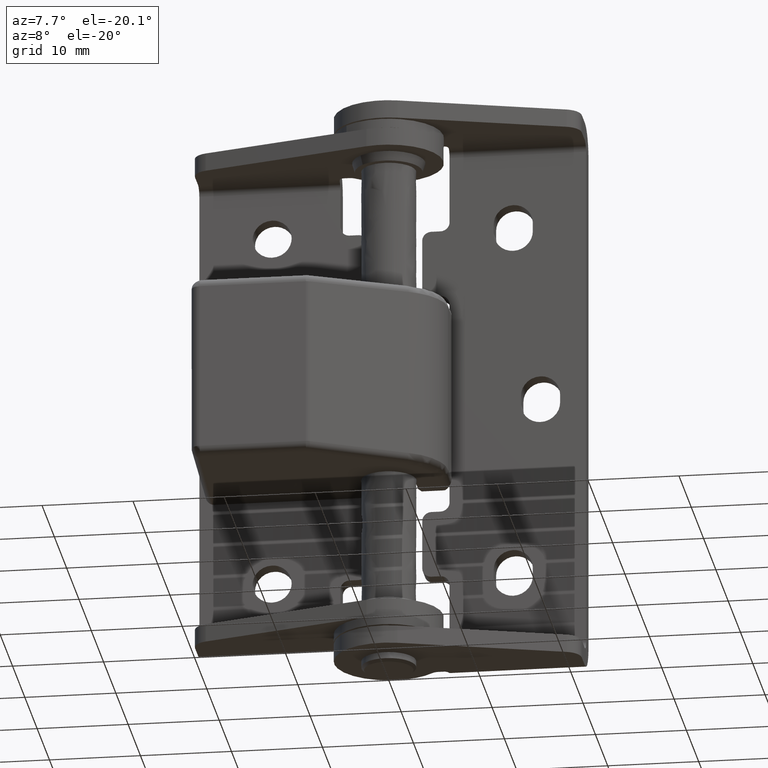
[diagram: clean part render]
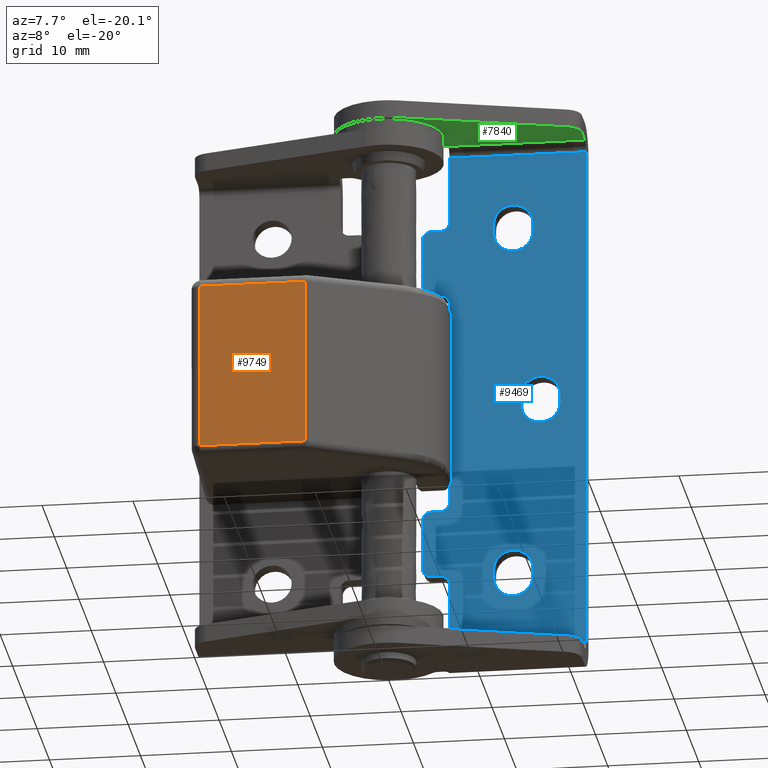
[diagram: same view with three faces highlighted in distinct colors, each labeled with its STEP entity id]
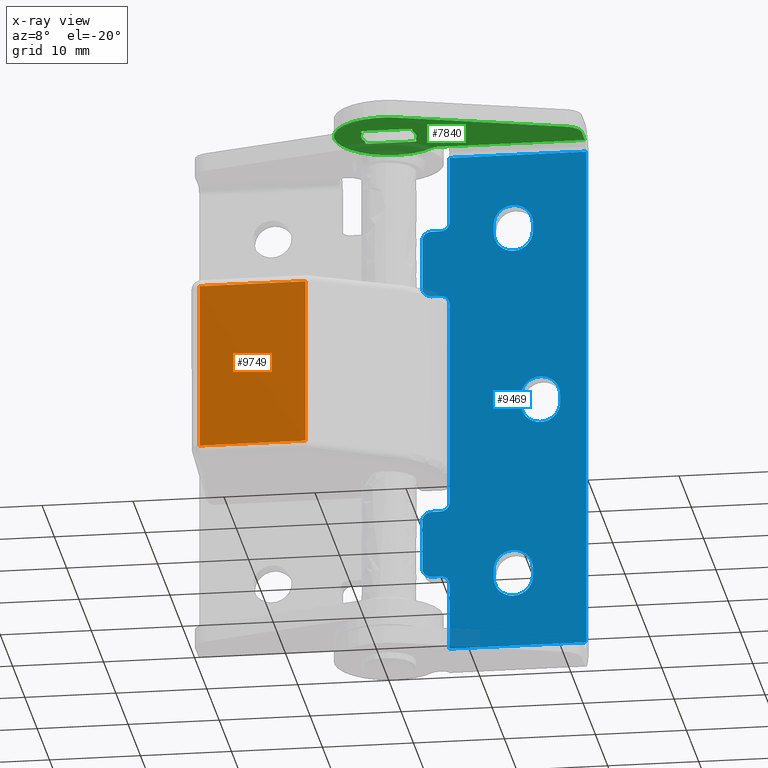
[diagram: x-ray of the same camera — body ghosted, the three highlighted faces saturated]
A machine part, auxiliary view with three faces highlighted in distinct colors.
The next image is the same camera in x-ray (body ghosted, the three faces saturated) — at least one of them is partly hidden behind the body in this view.
Their STEP definitions:

[orange] entity #9749 — the highlighted face is a freeform B-spline surface patch.
#9486=CARTESIAN_POINT('',(-7.641471176327670,-11.100000000000000,21.949999999999999));
#9487=VERTEX_POINT('',#9486);
#9488=CARTESIAN_POINT('',(-7.641471176327670,-11.100000000000000,40.442725711301250));
#9489=VERTEX_POINT('',#9488);
#9490=CARTESIAN_POINT('',(-7.641471176327670,-11.100000000000000,21.949999999999999));
#9491=CARTESIAN_POINT('',(-7.641471176327670,-11.100000000000000,40.442725711301250));
#9492=QUASI_UNIFORM_CURVE('',1,(#9490,#9491),.UNSPECIFIED.,.F.,.U.);
#9493=EDGE_CURVE('',#9487,#9489,#9492,.T.);
#9544=CARTESIAN_POINT('',(-19.292725711301149,-11.100000000000000,21.949999999999999));
#9545=VERTEX_POINT('',#9544);
#9558=CARTESIAN_POINT('',(-19.292725711301149,-11.100000000000000,40.442725711301250));
#9559=VERTEX_POINT('',#9558);
#9560=CARTESIAN_POINT('',(-19.292725711301149,-11.100000000000000,40.442725711301250));
#9561=CARTESIAN_POINT('',(-19.292725711301149,-11.100000000000000,21.949999999999999));
#9562=QUASI_UNIFORM_CURVE('',1,(#9560,#9561),.UNSPECIFIED.,.F.,.U.);
#9563=EDGE_CURVE('',#9559,#9545,#9562,.T.);
#9730=CARTESIAN_POINT('',(-19.874705852740679,-11.100000000000000,21.026288386562989));
#9731=CARTESIAN_POINT('',(-19.874705852740679,-11.100000000000000,41.366437820751813));
#9732=CARTESIAN_POINT('',(-7.059490722377138,-11.100000000000000,21.026288386562989));
#9733=CARTESIAN_POINT('',(-7.059490722377138,-11.100000000000000,41.366437820751813));
#9734=B_SPLINE_SURFACE_WITH_KNOTS('',1,1,((#9730,#9732),(#9731,#9733)),.UNSPECIFIED.,.F.,.F.,.U.,(2,2),(2,2),(0.0,20.340149434188820),(0.0,12.815215130363541),.UNSPECIFIED.);
#9735=ORIENTED_EDGE('',*,*,#9563,.T.);
#9736=CARTESIAN_POINT('',(-19.292725711301149,-11.100000000000000,21.949999999999999));
#9737=CARTESIAN_POINT('',(-7.641471176327670,-11.100000000000000,21.949999999999999));
#9738=QUASI_UNIFORM_CURVE('',1,(#9736,#9737),.UNSPECIFIED.,.F.,.U.);
#9739=EDGE_CURVE('',#9545,#9487,#9738,.T.);
#9740=ORIENTED_EDGE('',*,*,#9739,.T.);
#9741=ORIENTED_EDGE('',*,*,#9493,.T.);
#9742=CARTESIAN_POINT('',(-7.641471176327670,-11.100000000000000,40.442725711301250));
#9743=CARTESIAN_POINT('',(-19.292725711301149,-11.100000000000000,40.442725711301250));
#9744=QUASI_UNIFORM_CURVE('',1,(#9742,#9743),.UNSPECIFIED.,.F.,.U.);
#9745=EDGE_CURVE('',#9489,#9559,#9744,.T.);
#9746=ORIENTED_EDGE('',*,*,#9745,.T.);
#9747=EDGE_LOOP('',(#9735,#9740,#9741,#9746));
#9748=FACE_OUTER_BOUND('',#9747,.T.);
#9749=ADVANCED_FACE('',(#9748),#9734,.F.);

[blue] entity #9469 — the highlighted face is a freeform B-spline surface patch.
#7274=CARTESIAN_POINT('',(21.0,4.999999999999671,59.899999999999999));
#7275=VERTEX_POINT('',#7274);
#7322=CARTESIAN_POINT('',(6.000000000000150,4.999999999999671,59.899999999999999));
#7323=VERTEX_POINT('',#7322);
#7333=CARTESIAN_POINT('',(21.0,4.999999999999671,59.899999999999999));
#7334=CARTESIAN_POINT('',(6.000000000000150,4.999999999999671,59.899999999999999));
#7335=QUASI_UNIFORM_CURVE('',1,(#7333,#7334),.UNSPECIFIED.,.F.,.U.);
#7336=EDGE_CURVE('',#7275,#7323,#7335,.T.);
#7389=CARTESIAN_POINT('',(21.0,4.999999999999671,3.0));
#7390=VERTEX_POINT('',#7389);
#7402=CARTESIAN_POINT('',(6.000000000000241,4.999999999999671,3.0));
#7403=VERTEX_POINT('',#7402);
#7404=CARTESIAN_POINT('',(6.000000000000241,4.999999999999671,3.0));
#7405=CARTESIAN_POINT('',(21.0,4.999999999999671,3.0));
#7406=QUASI_UNIFORM_CURVE('',1,(#7404,#7405),.UNSPECIFIED.,.F.,.U.);
#7407=EDGE_CURVE('',#7403,#7390,#7406,.T.);
#8412=CARTESIAN_POINT('',(10.850000000000000,4.999999999999671,10.949999999999999));
#8413=VERTEX_POINT('',#8412);
#8419=CARTESIAN_POINT('',(13.000000983283369,4.999999999999670,8.800000000000225));
#8420=VERTEX_POINT('',#8419);
#8421=CARTESIAN_POINT('',(10.850000000000000,4.999999999999671,10.949999999999999));
#8422=CARTESIAN_POINT('',(10.849793394212311,4.999999999999686,10.694922383302821));
#8423=CARTESIAN_POINT('',(10.929214413477339,4.999999999999597,10.255322200595170));
#8424=CARTESIAN_POINT('',(11.197833607391800,4.999999999999770,9.745320923116250));
#8425=CARTESIAN_POINT('',(11.478536427124350,4.999999999999516,9.415925130594307));
#8426=CARTESIAN_POINT('',(11.797440880290720,4.999999999999756,9.150880744095732));
#8427=CARTESIAN_POINT('',(12.287786548937641,4.999999999999623,8.884829543755441));
#8428=CARTESIAN_POINT('',(12.727314531786440,4.999999999999668,8.799719339258706));
#8429=CARTESIAN_POINT('',(13.000000983283369,4.999999999999670,8.800000000000225));
#8430=B_SPLINE_CURVE_WITH_KNOTS('',3,(#8421,#8422,#8423,#8424,#8425,#8426,#8427,#8428,#8429),.UNSPECIFIED.,.F.,.U.,(4,1,1,1,1,1,4),(0.000000091122906,0.765153841179810,1.319246613823916,1.714973668953921,2.057987691563523,2.559310118497291,3.377233847388637),.UNSPECIFIED.);
#8431=EDGE_CURVE('',#8413,#8420,#8430,.T.);
#8433=CARTESIAN_POINT('',(15.150000000000000,4.999999999999671,10.949999999999999));
#8434=VERTEX_POINT('',#8433);
#8435=CARTESIAN_POINT('',(13.000000983283369,4.999999999999670,8.800000000000225));
#8436=CARTESIAN_POINT('',(13.272683017262761,4.999999999999660,8.799741815727574));
#8437=CARTESIAN_POINT('',(13.712221026016540,4.999999999999687,8.884808855302445));
#8438=CARTESIAN_POINT('',(14.218109234579680,4.999999999999659,9.159320381873771));
#8439=CARTESIAN_POINT('',(14.560972308214509,4.999999999999675,9.451436835746103));
#8440=CARTESIAN_POINT('',(14.862620482882820,4.999999999999661,9.832963009427843));
#8441=CARTESIAN_POINT('',(15.092486549669349,4.999999999999695,10.343182841179109));
#8442=CARTESIAN_POINT('',(15.150076290108951,4.999999999999647,10.747713141612589));
#8443=CARTESIAN_POINT('',(15.150000000000000,4.999999999999671,10.949999999999999));
#8444=B_SPLINE_CURVE_WITH_KNOTS('',3,(#8435,#8436,#8437,#8438,#8439,#8440,#8441,#8442,#8443),.UNSPECIFIED.,.F.,.U.,(4,1,1,1,1,1,4),(0.000000091460636,0.817923435065243,1.319246180944873,1.714973105788162,2.163527568453663,2.770389226314284,3.377232738992189),.UNSPECIFIED.);
#8445=EDGE_CURVE('',#8420,#8434,#8444,.T.);
#8475=CARTESIAN_POINT('',(15.150000000000000,4.999999999999671,51.950000000000003));
#8476=VERTEX_POINT('',#8475);
#8482=CARTESIAN_POINT('',(12.999999016716631,4.999999999999670,54.099999999999767));
#8483=VERTEX_POINT('',#8482);
#8484=CARTESIAN_POINT('',(15.150000000000000,4.999999999999671,51.950000000000003));
#8485=CARTESIAN_POINT('',(15.150003660258919,4.999999999999670,52.073122474268843));
#8486=CARTESIAN_POINT('',(15.125029685133130,4.999999999999674,52.363356756284453));
#8487=CARTESIAN_POINT('',(14.999122394926880,4.999999999999670,52.787815381564229));
#8488=CARTESIAN_POINT('',(14.779220541833601,4.999999999999680,53.181545848451229));
#8489=CARTESIAN_POINT('',(14.458506154510321,4.999999999999640,53.558098451112798));
#8490=CARTESIAN_POINT('',(14.062234486155770,4.999999999999695,53.844525218999841));
#8491=CARTESIAN_POINT('',(13.545236283502790,4.999999999999637,54.051218221529467));
#8492=CARTESIAN_POINT('',(13.202286241157720,4.999999999999739,54.100073317775482));
#8493=CARTESIAN_POINT('',(12.999999016716631,4.999999999999670,54.099999999999767));
#8494=B_SPLINE_CURVE_WITH_KNOTS('',3,(#8484,#8485,#8486,#8487,#8488,#8489,#8490,#8491,#8492,#8493),.UNSPECIFIED.,.F.,.U.,(4,1,1,1,1,1,1,4),(0.000000091084284,0.369372592057379,0.870693293373913,1.319246613799931,1.714973668934453,2.348231069103239,2.770390135100517,3.377233847388828),.UNSPECIFIED.);
#8495=EDGE_CURVE('',#8476,#8483,#8494,.T.);
#8497=CARTESIAN_POINT('',(10.850000000000000,4.999999999999671,51.950000000000003));
#8498=VERTEX_POINT('',#8497);
#8499=CARTESIAN_POINT('',(12.999999016716631,4.999999999999670,54.099999999999767));
#8500=CARTESIAN_POINT('',(12.824101598443811,4.999999999999663,54.100043480534403));
#8501=CARTESIAN_POINT('',(12.533895776107730,4.999999999999671,54.064176134210634));
#8502=CARTESIAN_POINT('',(12.115866907879980,4.999999999999671,53.923227687332101));
#8503=CARTESIAN_POINT('',(11.768442631901710,4.999999999999677,53.729233038679233));
#8504=CARTESIAN_POINT('',(11.465922726125680,4.999999999999647,53.471469337546068));
#8505=CARTESIAN_POINT('',(11.200883704621701,4.999999999999693,53.152558932756797));
#8506=CARTESIAN_POINT('',(10.934808448123039,4.999999999999635,52.662219997103762));
#8507=CARTESIAN_POINT('',(10.849741875677640,4.999999999999662,52.222681902812411));
#8508=CARTESIAN_POINT('',(10.850000000000000,4.999999999999671,51.950000000000003));
#8509=B_SPLINE_CURVE_WITH_KNOTS('',3,(#8499,#8500,#8501,#8502,#8503,#8504,#8505,#8506,#8507,#8508),.UNSPECIFIED.,.F.,.U.,(4,1,1,1,1,1,1,4),(0.000000091456119,0.527682692116088,0.870693007880625,1.319246180942828,1.714973105786884,2.057987015130767,2.559309278753933,3.377232738992172),.UNSPECIFIED.);
#8510=EDGE_CURVE('',#8483,#8498,#8509,.T.);
#8540=CARTESIAN_POINT('',(18.149999999999999,4.999999999999671,31.949999999999999));
#8541=VERTEX_POINT('',#8540);
#8547=CARTESIAN_POINT('',(15.999999016716631,4.999999999999671,34.099999999999781));
#8548=VERTEX_POINT('',#8547);
#8549=CARTESIAN_POINT('',(18.149999999999999,4.999999999999671,31.949999999999999));
#8550=CARTESIAN_POINT('',(18.150107962211148,4.999999999999672,32.169883396246910));
#8551=CARTESIAN_POINT('',(18.087393712573132,4.999999999999677,32.574382526635027));
#8552=CARTESIAN_POINT('',(17.862837531136080,4.999999999999652,33.056766418303702));
#8553=CARTESIAN_POINT('',(17.590209983825389,4.999999999999687,33.415028473825053));
#8554=CARTESIAN_POINT('',(17.321748763399039,4.999999999999708,33.658346182272382));
#8555=CARTESIAN_POINT('',(16.987930171194581,4.999999999999573,33.872623468505218));
#8556=CARTESIAN_POINT('',(16.562840150967300,4.999999999999791,34.048736567662907));
#8557=CARTESIAN_POINT('',(16.202283363249251,4.999999999999607,34.100069171246773));
#8558=CARTESIAN_POINT('',(15.999999016716631,4.999999999999671,34.099999999999781));
#8559=B_SPLINE_CURVE_WITH_KNOTS('',3,(#8549,#8550,#8551,#8552,#8553,#8554,#8555,#8556,#8557,#8558),.UNSPECIFIED.,.F.,.U.,(4,1,1,1,1,1,1,4),(0.000000091123685,0.659613345970790,1.213705938559106,1.583088384249104,2.005217953882646,2.295460679671922,2.770390135108174,3.377233847388515),.UNSPECIFIED.);
#8560=EDGE_CURVE('',#8541,#8548,#8559,.T.);
#8562=CARTESIAN_POINT('',(13.850000000000000,4.999999999999671,31.949999999999999));
#8563=VERTEX_POINT('',#8562);
#8564=CARTESIAN_POINT('',(15.999999016716631,4.999999999999671,34.099999999999781));
#8565=CARTESIAN_POINT('',(15.806506671767719,4.999999999999669,34.100064253635637));
#8566=CARTESIAN_POINT('',(15.516320211970470,4.999999999999675,34.060542962330558));
#8567=CARTESIAN_POINT('',(15.100424240464431,4.999999999999655,33.914605540281499));
#8568=CARTESIAN_POINT('',(14.768443466870799,4.999999999999703,33.729231108488889));
#8569=CARTESIAN_POINT('',(14.465921716529520,4.999999999999642,33.471469582307073));
#8570=CARTESIAN_POINT('',(14.200879834263770,4.999999999999679,33.152560406908947));
#8571=CARTESIAN_POINT('',(13.934830144580591,4.999999999999663,32.662213794159882));
#8572=CARTESIAN_POINT('',(13.849718751950149,4.999999999999663,32.222686584608873));
#8573=CARTESIAN_POINT('',(13.850000000000000,4.999999999999671,31.949999999999999));
#8574=B_SPLINE_CURVE_WITH_KNOTS('',3,(#8564,#8565,#8566,#8567,#8568,#8569,#8570,#8571,#8572,#8573),.UNSPECIFIED.,.F.,.U.,(4,1,1,1,1,1,1,4),(0.000000091474783,0.580453325388683,0.870693007893756,1.319246180953028,1.714973105794142,2.057987015135844,2.559309278756468,3.377232738992141),.UNSPECIFIED.);
#8575=EDGE_CURVE('',#8548,#8563,#8574,.T.);
#8593=CARTESIAN_POINT('',(6.000000000000230,4.999999999999671,52.450000000003698));
#8594=VERTEX_POINT('',#8593);
#8600=CARTESIAN_POINT('',(6.000000000000230,4.999999999999671,52.450000000003698));
#8601=CARTESIAN_POINT('',(6.000000000000150,4.999999999999671,59.899999999999999));
#8602=QUASI_UNIFORM_CURVE('',1,(#8600,#8601),.UNSPECIFIED.,.F.,.U.);
#8603=EDGE_CURVE('',#8594,#7323,#8602,.T.);
#8615=CARTESIAN_POINT('',(15.150000000000000,4.999999999999671,50.950000000000003));
#8616=VERTEX_POINT('',#8615);
#8622=CARTESIAN_POINT('',(15.150000000000000,4.999999999999671,51.950000000000003));
#8623=CARTESIAN_POINT('',(15.150000000000000,4.999999999999671,50.950000000000003));
#8624=QUASI_UNIFORM_CURVE('',1,(#8622,#8623),.UNSPECIFIED.,.F.,.U.);
#8625=EDGE_CURVE('',#8476,#8616,#8624,.T.);
#8651=CARTESIAN_POINT('',(10.850000000000000,4.999999999999671,50.950000000000003));
#8652=VERTEX_POINT('',#8651);
#8658=CARTESIAN_POINT('',(13.000000983283369,4.999999999999671,48.800000000000232));
#8659=VERTEX_POINT('',#8658);
#8660=CARTESIAN_POINT('',(10.850000000000000,4.999999999999671,50.950000000000003));
#8661=CARTESIAN_POINT('',(10.849942609664740,4.999999999999674,50.756510055116593));
#8662=CARTESIAN_POINT('',(10.899007737513200,4.999999999999665,50.395961054867570));
#8663=CARTESIAN_POINT('',(11.099295968213401,4.999999999999672,49.903859441065201));
#8664=CARTESIAN_POINT('',(11.407865040086820,4.999999999999664,49.471360261313720));
#8665=CARTESIAN_POINT('',(11.801740981024130,4.999999999999686,49.139947293757551));
#8666=CARTESIAN_POINT('',(12.340522309367950,4.999999999999667,48.872901654515410));
#8667=CARTESIAN_POINT('',(12.744912527342301,4.999999999999679,48.799778854560770));
#8668=CARTESIAN_POINT('',(13.000000983283369,4.999999999999671,48.800000000000232));
#8669=B_SPLINE_CURVE_WITH_KNOTS('',3,(#8660,#8661,#8662,#8663,#8664,#8665,#8666,#8667,#8668),.UNSPECIFIED.,.F.,.U.,(4,1,1,1,1,1,4),(0.000000091136048,0.580453515654607,1.081772563678272,1.583088384255648,2.163528279321926,2.612079737518249,3.377233847388635),.UNSPECIFIED.);
#8670=EDGE_CURVE('',#8652,#8659,#8669,.T.);
#8672=CARTESIAN_POINT('',(13.000000983283369,4.999999999999671,48.800000000000232));
#8673=CARTESIAN_POINT('',(13.219886117212241,4.999999999999673,48.799882634408213));
#8674=CARTESIAN_POINT('',(13.580400268318790,4.999999999999655,48.855824271126203));
#8675=CARTESIAN_POINT('',(14.035259244237359,4.999999999999710,49.050831275436757));
#8676=CARTESIAN_POINT('',(14.378986487422081,4.999999999999620,49.283563308830239));
#8677=CARTESIAN_POINT('',(14.703954853353940,4.999999999999711,49.608490888541922));
#8678=CARTESIAN_POINT('',(14.957682082252321,4.999999999999616,50.014618261688732));
#8679=CARTESIAN_POINT('',(15.115840718881630,4.999999999999764,50.483891749839550));
#8680=CARTESIAN_POINT('',(15.150030204182690,4.999999999999615,50.791694882839359));
#8681=CARTESIAN_POINT('',(15.150000000000000,4.999999999999671,50.950000000000003));
#8682=B_SPLINE_CURVE_WITH_KNOTS('',3,(#8672,#8673,#8674,#8675,#8676,#8677,#8678,#8679,#8680,#8681),.UNSPECIFIED.,.F.,.U.,(4,1,1,1,1,1,1,4),(0.000000091459207,0.659613129889625,1.081772209188637,1.477553678639453,1.899679561691809,2.453770272488490,2.902321583603634,3.377232738992126),.UNSPECIFIED.);
#8683=EDGE_CURVE('',#8659,#8616,#8682,.T.);
#8696=CARTESIAN_POINT('',(10.850000000000000,4.999999999999671,50.950000000000003));
#8697=CARTESIAN_POINT('',(10.850000000000000,4.999999999999671,51.950000000000003));
#8698=QUASI_UNIFORM_CURVE('',1,(#8696,#8697),.UNSPECIFIED.,.F.,.U.);
#8699=EDGE_CURVE('',#8652,#8498,#8698,.T.);
#8711=CARTESIAN_POINT('',(18.149999999999999,4.999999999999671,30.949999999999999));
#8712=VERTEX_POINT('',#8711);
#8718=CARTESIAN_POINT('',(18.149999999999999,4.999999999999671,31.949999999999999));
#8719=CARTESIAN_POINT('',(18.149999999999999,4.999999999999671,30.949999999999999));
#8720=QUASI_UNIFORM_CURVE('',1,(#8718,#8719),.UNSPECIFIED.,.F.,.U.);
#8721=EDGE_CURVE('',#8541,#8712,#8720,.T.);
#8747=CARTESIAN_POINT('',(13.850000000000000,4.999999999999671,30.949999999999999));
#8748=VERTEX_POINT('',#8747);
#8754=CARTESIAN_POINT('',(16.000000983283371,4.999999999999670,28.800000000000221));
#8755=VERTEX_POINT('',#8754);
#8756=CARTESIAN_POINT('',(13.850000000000000,4.999999999999671,30.949999999999999));
#8757=CARTESIAN_POINT('',(13.849897099569301,4.999999999999679,30.730120850841072));
#8758=CARTESIAN_POINT('',(13.909887026581741,4.999999999999667,30.343202254397749));
#8759=CARTESIAN_POINT('',(14.120922720135260,4.999999999999665,29.874985734712091));
#8760=CARTESIAN_POINT('',(14.394986871288200,4.999999999999662,29.495807683427550));
#8761=CARTESIAN_POINT('',(14.729818618627760,4.999999999999704,29.192305871411701));
#8762=CARTESIAN_POINT('',(15.092706118645550,4.999999999999588,28.989710760986231));
#8763=CARTESIAN_POINT('',(15.507532157438970,4.999999999999698,28.841273219993319));
#8764=CARTESIAN_POINT('',(15.797709037573449,4.999999999999668,28.799922266355090));
#8765=CARTESIAN_POINT('',(16.000000983283371,4.999999999999670,28.800000000000221));
#8766=B_SPLINE_CURVE_WITH_KNOTS('',3,(#8756,#8757,#8758,#8759,#8760,#8761,#8762,#8763,#8764,#8765),.UNSPECIFIED.,.F.,.U.,(4,1,1,1,1,1,1,4),(0.000000091130116,0.659613345974426,1.160935210616188,1.530321830095784,2.057987691565407,2.506540696591449,2.770390135108563,3.377233847388639),.UNSPECIFIED.);
#8767=EDGE_CURVE('',#8748,#8755,#8766,.T.);
#8769=CARTESIAN_POINT('',(16.000000983283371,4.999999999999670,28.800000000000221));
#8770=CARTESIAN_POINT('',(16.158307147266960,4.999999999999674,28.799969122451731));
#8771=CARTESIAN_POINT('',(16.448517742949399,4.999999999999662,28.832211541888132));
#8772=CARTESIAN_POINT('',(16.919129687611061,4.999999999999674,28.984420744294649));
#8773=CARTESIAN_POINT('',(17.404998330424519,4.999999999999670,29.279601711321838));
#8774=CARTESIAN_POINT('',(17.794379583709819,4.999999999999660,29.720021621446239));
#8775=CARTESIAN_POINT('',(18.077108324795041,4.999999999999655,30.290515190019669));
#8776=CARTESIAN_POINT('',(18.150212682675889,4.999999999999687,30.694917263959169));
#8777=CARTESIAN_POINT('',(18.149999999999999,4.999999999999671,30.949999999999999));
#8778=B_SPLINE_CURVE_WITH_KNOTS('',3,(#8769,#8770,#8771,#8772,#8773,#8774,#8775,#8776,#8777),.UNSPECIFIED.,.F.,.U.,(4,1,1,1,1,1,4),(0.000000091463717,0.474912289953850,0.870693007885066,1.477553678640542,2.163527568455173,2.612078880541985,3.377232738992127),.UNSPECIFIED.);
#8779=EDGE_CURVE('',#8755,#8712,#8778,.T.);
#8792=CARTESIAN_POINT('',(13.850000000000000,4.999999999999671,30.949999999999999));
#8793=CARTESIAN_POINT('',(13.850000000000000,4.999999999999671,31.949999999999999));
#8794=QUASI_UNIFORM_CURVE('',1,(#8792,#8793),.UNSPECIFIED.,.F.,.U.);
#8795=EDGE_CURVE('',#8748,#8563,#8794,.T.);
#8816=CARTESIAN_POINT('',(5.000000000000260,4.999999999999671,51.450000000003698));
#8817=VERTEX_POINT('',#8816);
#8823=CARTESIAN_POINT('',(5.000000000000260,4.999999999999671,51.450000000003698));
#8824=CARTESIAN_POINT('',(5.130921460936106,4.999999999999684,51.449855304292392));
#8825=CARTESIAN_POINT('',(5.359883088721492,4.999999999999653,51.495657959834674));
#8826=CARTESIAN_POINT('',(5.650741415561999,4.999999999999674,51.669964105318527));
#8827=CARTESIAN_POINT('',(5.826363106750893,4.999999999999673,51.868600810206431));
#8828=CARTESIAN_POINT('',(5.962483827631151,4.999999999999658,52.131030177021373));
#8829=CARTESIAN_POINT('',(6.000159072857158,4.999999999999736,52.319066209155132));
#8830=CARTESIAN_POINT('',(6.000000000000230,4.999999999999671,52.450000000003698));
#8831=B_SPLINE_CURVE_WITH_KNOTS('',3,(#8823,#8824,#8825,#8826,#8827,#8828,#8829,#8830),.UNSPECIFIED.,.F.,.U.,(4,1,1,1,1,4),(0.000000143571526,0.392709598728133,0.687244893560149,1.006303829732421,1.178126848960124,1.570835744349083),.UNSPECIFIED.);
#8832=EDGE_CURVE('',#8817,#8594,#8831,.T.);
#8844=CARTESIAN_POINT('',(4.000000000000055,4.999999999999671,51.450000000003698));
#8845=VERTEX_POINT('',#8844);
#8851=CARTESIAN_POINT('',(4.000000000000055,4.999999999999671,51.450000000003698));
#8852=CARTESIAN_POINT('',(5.000000000000260,4.999999999999671,51.450000000003698));
#8853=QUASI_UNIFORM_CURVE('',1,(#8851,#8852),.UNSPECIFIED.,.F.,.U.);
#8854=EDGE_CURVE('',#8845,#8817,#8853,.T.);
#8875=CARTESIAN_POINT('',(3.000000000000075,4.999999999999671,50.450000000003698));
#8876=VERTEX_POINT('',#8875);
#8882=CARTESIAN_POINT('',(4.000000000000055,4.999999999999671,51.450000000003698));
#8883=CARTESIAN_POINT('',(3.852692912520805,4.999999999999673,51.450202663181408));
#8884=CARTESIAN_POINT('',(3.623835896042683,4.999999999999664,51.398457836034908));
#8885=CARTESIAN_POINT('',(3.338291328919647,4.999999999999690,51.217590963148147));
#8886=CARTESIAN_POINT('',(3.173634951901955,4.999999999999608,51.031404372825762));
#8887=CARTESIAN_POINT('',(3.037516874470553,4.999999999999719,50.768968052630193));
#8888=CARTESIAN_POINT('',(2.999840792870465,4.999999999999636,50.580933574141838));
#8889=CARTESIAN_POINT('',(3.000000000000075,4.999999999999671,50.450000000003698));
#8890=B_SPLINE_CURVE_WITH_KNOTS('',3,(#8882,#8883,#8884,#8885,#8886,#8887,#8888,#8889),.UNSPECIFIED.,.F.,.U.,(4,1,1,1,1,4),(0.000000143574722,0.441799839028644,0.687244893560857,1.006303829732445,1.178126848959996,1.570835744349064),.UNSPECIFIED.);
#8891=EDGE_CURVE('',#8845,#8876,#8890,.T.);
#8903=CARTESIAN_POINT('',(3.000000000000055,4.999999999999671,44.950000000003747));
#8904=VERTEX_POINT('',#8903);
#8910=CARTESIAN_POINT('',(3.000000000000055,4.999999999999671,44.950000000003747));
#8911=CARTESIAN_POINT('',(3.000000000000075,4.999999999999671,50.450000000003698));
#8912=QUASI_UNIFORM_CURVE('',1,(#8910,#8911),.UNSPECIFIED.,.F.,.U.);
#8913=EDGE_CURVE('',#8904,#8876,#8912,.T.);
#8934=CARTESIAN_POINT('',(4.000000000000055,4.999999999999671,43.950000000003747));
#8935=VERTEX_POINT('',#8934);
#8941=CARTESIAN_POINT('',(3.000000000000055,4.999999999999671,44.950000000003747));
#8942=CARTESIAN_POINT('',(2.999855587502118,4.999999999999676,44.819078195853258));
#8943=CARTESIAN_POINT('',(3.045657748257857,4.999999999999663,44.590117274976173));
#8944=CARTESIAN_POINT('',(3.219963143715324,4.999999999999657,44.299255511224843));
#8945=CARTESIAN_POINT('',(3.418604237945643,4.999999999999740,44.123645119258349));
#8946=CARTESIAN_POINT('',(3.681020510709375,4.999999999999592,43.987500075434383));
#8947=CARTESIAN_POINT('',(3.869071083307659,4.999999999999709,43.949848124070463));
#8948=CARTESIAN_POINT('',(4.000000000000055,4.999999999999671,43.950000000003747));
#8949=B_SPLINE_CURVE_WITH_KNOTS('',3,(#8941,#8942,#8943,#8944,#8945,#8946,#8947,#8948),.UNSPECIFIED.,.F.,.U.,(4,1,1,1,1,4),(0.000000143574360,0.392709598729336,0.687244893560492,1.006303829732368,1.178126848960033,1.570835744349058),.UNSPECIFIED.);
#8950=EDGE_CURVE('',#8904,#8935,#8949,.T.);
#8962=CARTESIAN_POINT('',(5.000000000000230,4.999999999999671,43.950000000003747));
#8963=VERTEX_POINT('',#8962);
#8969=CARTESIAN_POINT('',(5.000000000000230,4.999999999999671,43.950000000003747));
#8970=CARTESIAN_POINT('',(4.000000000000055,4.999999999999671,43.950000000003747));
#8971=QUASI_UNIFORM_CURVE('',1,(#8969,#8970),.UNSPECIFIED.,.F.,.U.);
#8972=EDGE_CURVE('',#8963,#8935,#8971,.T.);
#8993=CARTESIAN_POINT('',(6.000000000000230,4.999999999999671,42.950000000003747));
#8994=VERTEX_POINT('',#8993);
#9000=CARTESIAN_POINT('',(6.000000000000230,4.999999999999671,42.950000000003747));
#9001=CARTESIAN_POINT('',(6.000154536031614,4.999999999999676,43.080932536375428));
#9002=CARTESIAN_POINT('',(5.962490709494401,4.999999999999673,43.268973024974557));
#9003=CARTESIAN_POINT('',(5.830135246627668,4.999999999999666,43.524101034584540));
#9004=CARTESIAN_POINT('',(5.668087211340325,4.999999999999692,43.711964703131748));
#9005=CARTESIAN_POINT('',(5.384348976675201,4.999999999999651,43.896589366822766));
#9006=CARTESIAN_POINT('',(5.147309273342344,4.999999999999690,43.950233835416498));
#9007=CARTESIAN_POINT('',(5.000000000000230,4.999999999999671,43.950000000003747));
#9008=B_SPLINE_CURVE_WITH_KNOTS('',3,(#9000,#9001,#9002,#9003,#9004,#9005,#9006,#9007),.UNSPECIFIED.,.F.,.U.,(4,1,1,1,1,4),(0.000000143573052,0.392709598729018,0.564531804314637,0.859036542772161,1.129037301955464,1.570835744349132),.UNSPECIFIED.);
#9009=EDGE_CURVE('',#8994,#8963,#9008,.T.);
#9021=CARTESIAN_POINT('',(6.000000000000230,4.999999999999671,19.950000000003651));
#9022=VERTEX_POINT('',#9021);
#9028=CARTESIAN_POINT('',(6.000000000000230,4.999999999999671,19.950000000003651));
#9029=CARTESIAN_POINT('',(6.000000000000230,4.999999999999671,42.950000000003747));
#9030=QUASI_UNIFORM_CURVE('',1,(#9028,#9029),.UNSPECIFIED.,.F.,.U.);
#9031=EDGE_CURVE('',#9022,#8994,#9030,.T.);
#9052=CARTESIAN_POINT('',(5.000000000000230,4.999999999999671,18.950000000003651));
#9053=VERTEX_POINT('',#9052);
#9059=CARTESIAN_POINT('',(5.000000000000230,4.999999999999671,18.950000000003651));
#9060=CARTESIAN_POINT('',(5.114542321969313,4.999999999999680,18.949928840802439));
#9061=CARTESIAN_POINT('',(5.343592166183072,4.999999999999656,18.989762387020850));
#9062=CARTESIAN_POINT('',(5.596402764688972,4.999999999999682,19.132982873178040));
#9063=CARTESIAN_POINT('',(5.796243739724432,4.999999999999668,19.327989843158189));
#9064=CARTESIAN_POINT('',(5.952724493646993,4.999999999999679,19.581918047349909));
#9065=CARTESIAN_POINT('',(6.000140562405460,4.999999999999675,19.819083818285652));
#9066=CARTESIAN_POINT('',(6.000000000000230,4.999999999999671,19.950000000003651));
#9067=B_SPLINE_CURVE_WITH_KNOTS('',3,(#9059,#9060,#9061,#9062,#9063,#9064,#9065,#9066),.UNSPECIFIED.,.F.,.U.,(4,1,1,1,1,4),(0.000000143572523,0.343620060913082,0.687244893560253,0.859036542771628,1.178126848959750,1.570835744349098),.UNSPECIFIED.);
#9068=EDGE_CURVE('',#9053,#9022,#9067,.T.);
#9080=CARTESIAN_POINT('',(4.000000000000055,4.999999999999671,18.950000000003850));
#9081=VERTEX_POINT('',#9080);
#9087=CARTESIAN_POINT('',(4.000000000000055,4.999999999999671,18.950000000003850));
#9088=CARTESIAN_POINT('',(5.000000000000230,4.999999999999671,18.950000000003651));
#9089=QUASI_UNIFORM_CURVE('',1,(#9087,#9088),.UNSPECIFIED.,.F.,.U.);
#9090=EDGE_CURVE('',#9081,#9053,#9089,.T.);
#9111=CARTESIAN_POINT('',(3.000000000000055,4.999999999999671,17.950000000003850));
#9112=VERTEX_POINT('',#9111);
#9118=CARTESIAN_POINT('',(4.000000000000055,4.999999999999671,18.950000000003850));
#9119=CARTESIAN_POINT('',(3.869073413155340,4.999999999999676,18.950150387945421));
#9120=CARTESIAN_POINT('',(3.664661119304298,4.999999999999659,18.909230915781752));
#9121=CARTESIAN_POINT('',(3.412279445034840,4.999999999999672,18.770293378397511));
#9122=CARTESIAN_POINT('',(3.235154534881466,4.999999999999672,18.609769499848870));
#9123=CARTESIAN_POINT('',(3.056493246426664,4.999999999999668,18.342483884045311));
#9124=CARTESIAN_POINT('',(2.999702462857639,4.999999999999677,18.105510072394502));
#9125=CARTESIAN_POINT('',(3.000000000000055,4.999999999999671,17.950000000003850));
#9126=B_SPLINE_CURVE_WITH_KNOTS('',3,(#9118,#9119,#9120,#9121,#9122,#9123,#9124,#9125),.UNSPECIFIED.,.F.,.U.,(4,1,1,1,1,4),(0.000000143573442,0.392709598729051,0.613615416985031,0.859036542771898,1.104488923595385,1.570835744349098),.UNSPECIFIED.);
#9127=EDGE_CURVE('',#9081,#9112,#9126,.T.);
#9139=CARTESIAN_POINT('',(3.000000000000055,4.999999999999671,12.450000000003641));
#9140=VERTEX_POINT('',#9139);
#9146=CARTESIAN_POINT('',(3.000000000000055,4.999999999999671,12.450000000003641));
#9147=CARTESIAN_POINT('',(3.000000000000055,4.999999999999671,17.950000000003850));
#9148=QUASI_UNIFORM_CURVE('',1,(#9146,#9147),.UNSPECIFIED.,.F.,.U.);
#9149=EDGE_CURVE('',#9140,#9112,#9148,.T.);
#9170=CARTESIAN_POINT('',(4.000000000000055,4.999999999999671,11.450000000003620));
#9171=VERTEX_POINT('',#9170);
#9177=CARTESIAN_POINT('',(3.000000000000055,4.999999999999671,12.450000000003641));
#9178=CARTESIAN_POINT('',(2.999746077100244,4.999999999999671,12.294493719274181));
#9179=CARTESIAN_POINT('',(3.054504941504332,4.999999999999673,12.065698390432321));
#9180=CARTESIAN_POINT('',(3.238622582032392,4.999999999999665,11.782803823948070));
#9181=CARTESIAN_POINT('',(3.437221571637350,4.999999999999691,11.607162381248971));
#9182=CARTESIAN_POINT('',(3.705507470372544,4.999999999999660,11.480321981133480));
#9183=CARTESIAN_POINT('',(3.893638865582444,4.999999999999679,11.449937052562820));
#9184=CARTESIAN_POINT('',(4.000000000000055,4.999999999999671,11.450000000003620));
#9185=B_SPLINE_CURVE_WITH_KNOTS('',3,(#9177,#9178,#9179,#9180,#9181,#9182,#9183,#9184),.UNSPECIFIED.,.F.,.U.,(4,1,1,1,1,4),(0.000000143571452,0.466347651051443,0.687244893559853,1.006303829732055,1.251764774322899,1.570835744349130),.UNSPECIFIED.);
#9186=EDGE_CURVE('',#9140,#9171,#9185,.T.);
#9198=CARTESIAN_POINT('',(5.000000000000201,4.999999999999671,11.450000000003641));
#9199=VERTEX_POINT('',#9198);
#9205=CARTESIAN_POINT('',(5.000000000000201,4.999999999999671,11.450000000003641));
#9206=CARTESIAN_POINT('',(4.000000000000055,4.999999999999671,11.450000000003620));
#9207=QUASI_UNIFORM_CURVE('',1,(#9205,#9206),.UNSPECIFIED.,.F.,.U.);
#9208=EDGE_CURVE('',#9199,#9171,#9207,.T.);
#9229=CARTESIAN_POINT('',(6.000000000000340,4.999999999999671,10.450000000003740));
#9230=VERTEX_POINT('',#9229);
#9236=CARTESIAN_POINT('',(6.000000000000340,4.999999999999671,10.450000000003740));
#9237=CARTESIAN_POINT('',(6.000070918506152,4.999999999999674,10.564545314626860));
#9238=CARTESIAN_POINT('',(5.960237891150110,4.999999999999666,10.793577331808820));
#9239=CARTESIAN_POINT('',(5.792475027008122,4.999999999999670,11.089785736895699));
#9240=CARTESIAN_POINT('',(5.568979573308393,4.999999999999672,11.287330862178511));
#9241=CARTESIAN_POINT('',(5.302660216517025,4.999999999999665,11.417304982457710));
#9242=CARTESIAN_POINT('',(5.114547022445704,4.999999999999680,11.450073039849970));
#9243=CARTESIAN_POINT('',(5.000000000000201,4.999999999999671,11.450000000003641));
#9244=B_SPLINE_CURVE_WITH_KNOTS('',3,(#9236,#9237,#9238,#9239,#9240,#9241,#9242,#9243),.UNSPECIFIED.,.F.,.U.,(4,1,1,1,1,4),(0.000000143574816,0.343620060914797,0.687244893561578,1.006303829733135,1.227216395962344,1.570835744349184),.UNSPECIFIED.);
#9245=EDGE_CURVE('',#9230,#9199,#9244,.T.);
#9260=CARTESIAN_POINT('',(6.000000000000241,4.999999999999671,3.0));
#9261=CARTESIAN_POINT('',(6.000000000000340,4.999999999999671,10.450000000003740));
#9262=QUASI_UNIFORM_CURVE('',1,(#9260,#9261),.UNSPECIFIED.,.F.,.U.);
#9263=EDGE_CURVE('',#7403,#9230,#9262,.T.);
#9310=CARTESIAN_POINT('',(21.0,4.999999999999671,59.899999999999999));
#9311=CARTESIAN_POINT('',(21.0,4.999999999999671,3.0));
#9312=QUASI_UNIFORM_CURVE('',1,(#9310,#9311),.UNSPECIFIED.,.F.,.U.);
#9313=EDGE_CURVE('',#7275,#7390,#9312,.T.);
#9327=CARTESIAN_POINT('',(10.850000000000000,4.999999999999671,11.949999999999999));
#9328=VERTEX_POINT('',#9327);
#9334=CARTESIAN_POINT('',(10.850000000000000,4.999999999999671,11.949999999999999));
#9335=CARTESIAN_POINT('',(10.850000000000000,4.999999999999671,10.949999999999999));
#9336=QUASI_UNIFORM_CURVE('',1,(#9334,#9335),.UNSPECIFIED.,.F.,.U.);
#9337=EDGE_CURVE('',#9328,#8413,#9336,.T.);
#9363=CARTESIAN_POINT('',(15.150000000000000,4.999999999999671,11.949999999999999));
#9364=VERTEX_POINT('',#9363);
#9370=CARTESIAN_POINT('',(12.999999016716631,4.999999999999671,14.099999999999779));
#9371=VERTEX_POINT('',#9370);
#9372=CARTESIAN_POINT('',(15.150000000000000,4.999999999999671,11.949999999999999));
#9373=CARTESIAN_POINT('',(15.150095274559860,4.999999999999670,12.169881692066070));
#9374=CARTESIAN_POINT('',(15.094197182125180,4.999999999999667,12.530403080072290));
#9375=CARTESIAN_POINT('',(14.899164886167959,4.999999999999675,12.985258551321319));
#9376=CARTESIAN_POINT('',(14.666435217416760,4.999999999999666,13.328985787513810));
#9377=CARTESIAN_POINT('',(14.354000716569590,4.999999999999673,13.641448630542049));
#9378=CARTESIAN_POINT('',(13.988871542392539,4.999999999999714,13.875814900088841));
#9379=CARTESIAN_POINT('',(13.527642198293981,4.999999999999643,14.053704973214350));
#9380=CARTESIAN_POINT('',(13.202291456257470,4.999999999999679,14.100087616799030));
#9381=CARTESIAN_POINT('',(12.999999016716631,4.999999999999671,14.099999999999779));
#9382=B_SPLINE_CURVE_WITH_KNOTS('',3,(#9372,#9373,#9374,#9375,#9376,#9377,#9378,#9379,#9380,#9381),.UNSPECIFIED.,.F.,.U.,(4,1,1,1,1,1,1,4),(0.000000091114336,0.659613345962095,1.081772563661740,1.477554163971670,1.899680186557788,2.401001201038371,2.770390135105506,3.377233847388689),.UNSPECIFIED.);
#9383=EDGE_CURVE('',#9364,#9371,#9382,.T.);
#9385=CARTESIAN_POINT('',(12.999999016716631,4.999999999999671,14.099999999999779));
#9386=CARTESIAN_POINT('',(12.841694991442219,4.999999999999693,14.100026080172871));
#9387=CARTESIAN_POINT('',(12.551475049748220,4.999999999999625,14.067800647004679));
#9388=CARTESIAN_POINT('',(12.131307756435980,4.999999999999715,13.931856970717851));
#9389=CARTESIAN_POINT('',(11.768450848773830,4.999999999999631,13.729224616407739));
#9390=CARTESIAN_POINT('',(11.391909428597531,4.999999999999737,13.408505478913430));
#9391=CARTESIAN_POINT('',(11.089821199788490,4.999999999999617,12.990622893508711));
#9392=CARTESIAN_POINT('',(10.892338451739169,4.999999999999732,12.468868383402130));
#9393=CARTESIAN_POINT('',(10.849955192831461,4.999999999999596,12.125896895534041));
#9394=CARTESIAN_POINT('',(10.850000000000000,4.999999999999671,11.949999999999999));
#9395=B_SPLINE_CURVE_WITH_KNOTS('',3,(#9385,#9386,#9387,#9388,#9389,#9390,#9391,#9392,#9393,#9394),.UNSPECIFIED.,.F.,.U.,(4,1,1,1,1,1,1,4),(0.000000091457958,0.474912289949612,0.870693007881884,1.319246180943948,1.714973105787639,2.348230298968858,2.849550919238352,3.377232738992179),.UNSPECIFIED.);
#9396=EDGE_CURVE('',#9371,#9328,#9395,.T.);
#9409=CARTESIAN_POINT('',(15.150000000000000,4.999999999999671,10.949999999999999));
#9410=CARTESIAN_POINT('',(15.150000000000000,4.999999999999671,11.949999999999999));
#9411=QUASI_UNIFORM_CURVE('',1,(#9409,#9410),.UNSPECIFIED.,.F.,.U.);
#9412=EDGE_CURVE('',#8434,#9364,#9411,.T.);
#9418=CARTESIAN_POINT('',(2.100900034887551,4.999999999999630,62.742154889716772));
#9419=CARTESIAN_POINT('',(21.899100447910129,4.999999999999630,62.742154889716772));
#9420=CARTESIAN_POINT('',(2.100900034887551,4.999999999999630,0.157843584106311));
#9421=CARTESIAN_POINT('',(21.899100447910129,4.999999999999630,0.157843584106311));
#9422=B_SPLINE_SURFACE_WITH_KNOTS('',1,1,((#9418,#9420),(#9419,#9421)),.UNSPECIFIED.,.F.,.F.,.U.,(2,2),(2,2),(0.0,19.798200413022581),(0.0,62.584311305610449),.UNSPECIFIED.);
#9423=ORIENTED_EDGE('',*,*,#9263,.F.);
#9424=ORIENTED_EDGE('',*,*,#7407,.T.);
#9425=ORIENTED_EDGE('',*,*,#9313,.F.);
#9426=ORIENTED_EDGE('',*,*,#7336,.T.);
#9427=ORIENTED_EDGE('',*,*,#8603,.F.);
#9428=ORIENTED_EDGE('',*,*,#8832,.F.);
#9429=ORIENTED_EDGE('',*,*,#8854,.F.);
#9430=ORIENTED_EDGE('',*,*,#8891,.T.);
#9431=ORIENTED_EDGE('',*,*,#8913,.F.);
#9432=ORIENTED_EDGE('',*,*,#8950,.T.);
#9433=ORIENTED_EDGE('',*,*,#8972,.F.);
#9434=ORIENTED_EDGE('',*,*,#9009,.F.);
#9435=ORIENTED_EDGE('',*,*,#9031,.F.);
#9436=ORIENTED_EDGE('',*,*,#9068,.F.);
#9437=ORIENTED_EDGE('',*,*,#9090,.F.);
#9438=ORIENTED_EDGE('',*,*,#9127,.T.);
#9439=ORIENTED_EDGE('',*,*,#9149,.F.);
#9440=ORIENTED_EDGE('',*,*,#9186,.T.);
#9441=ORIENTED_EDGE('',*,*,#9208,.F.);
#9442=ORIENTED_EDGE('',*,*,#9245,.F.);
#9443=EDGE_LOOP('',(#9423,#9424,#9425,#9426,#9427,#9428,#9429,#9430,#9431,#9432,#9433,#9434,#9435,#9436,#9437,#9438,#9439,#9440,#9441,#9442));
#9444=FACE_OUTER_BOUND('',#9443,.T.);
#9445=ORIENTED_EDGE('',*,*,#8795,.T.);
#9446=ORIENTED_EDGE('',*,*,#8575,.F.);
#9447=ORIENTED_EDGE('',*,*,#8560,.F.);
#9448=ORIENTED_EDGE('',*,*,#8721,.T.);
#9449=ORIENTED_EDGE('',*,*,#8779,.F.);
#9450=ORIENTED_EDGE('',*,*,#8767,.F.);
#9451=EDGE_LOOP('',(#9445,#9446,#9447,#9448,#9449,#9450));
#9452=FACE_BOUND('',#9451,.T.);
#9453=ORIENTED_EDGE('',*,*,#9412,.F.);
#9454=ORIENTED_EDGE('',*,*,#8445,.F.);
#9455=ORIENTED_EDGE('',*,*,#8431,.F.);
#9456=ORIENTED_EDGE('',*,*,#9337,.F.);
#9457=ORIENTED_EDGE('',*,*,#9396,.F.);
#9458=ORIENTED_EDGE('',*,*,#9383,.F.);
#9459=EDGE_LOOP('',(#9453,#9454,#9455,#9456,#9457,#9458));
#9460=FACE_BOUND('',#9459,.T.);
#9461=ORIENTED_EDGE('',*,*,#8699,.T.);
#9462=ORIENTED_EDGE('',*,*,#8510,.F.);
#9463=ORIENTED_EDGE('',*,*,#8495,.F.);
#9464=ORIENTED_EDGE('',*,*,#8625,.T.);
#9465=ORIENTED_EDGE('',*,*,#8683,.F.);
#9466=ORIENTED_EDGE('',*,*,#8670,.F.);
#9467=EDGE_LOOP('',(#9461,#9462,#9463,#9464,#9465,#9466));
#9468=FACE_BOUND('',#9467,.T.);
#9469=ADVANCED_FACE('',(#9444,#9452,#9460,#9468),#9422,.F.);

[green] entity #7840 — the highlighted face is a freeform B-spline surface patch.
#6568=CARTESIAN_POINT('',(2.600000000000220,2.025000000000000,60.900000000000013));
#6569=VERTEX_POINT('',#6568);
#6575=CARTESIAN_POINT('',(2.800000000000210,1.825000000000000,60.900000000000013));
#6576=VERTEX_POINT('',#6575);
#6577=CARTESIAN_POINT('',(2.800000000000210,1.825000000000000,60.900000000000013));
#6578=CARTESIAN_POINT('',(2.800131296673991,1.864316826248665,60.900000000000063));
#6579=CARTESIAN_POINT('',(2.783093396126283,1.919762218371626,60.900000000000027));
#6580=CARTESIAN_POINT('',(2.729210535785848,1.982191848958980,60.899999999999920));
#6581=CARTESIAN_POINT('',(2.672002357698434,2.016484440915368,60.900000000000148));
#6582=CARTESIAN_POINT('',(2.622905941898531,2.025012648281217,60.899999999999913));
#6583=CARTESIAN_POINT('',(2.600000000000220,2.025000000000000,60.900000000000013));
#6584=B_SPLINE_CURVE_WITH_KNOTS('',3,(#6577,#6578,#6579,#6580,#6581,#6582,#6583),.UNSPECIFIED.,.F.,.U.,(4,1,1,1,4),(0.000000349457522,0.117837293608151,0.166889541167479,0.245464886377509,0.314190776795756),.UNSPECIFIED.);
#6585=EDGE_CURVE('',#6576,#6569,#6584,.T.);
#6608=CARTESIAN_POINT('',(2.800000000000210,1.144825314185382,60.900000000000013));
#6609=VERTEX_POINT('',#6608);
#6610=CARTESIAN_POINT('',(2.800000000000210,1.144825314185382,60.900000000000013));
#6611=CARTESIAN_POINT('',(2.800000000000210,1.825000000000000,60.900000000000013));
#6612=QUASI_UNIFORM_CURVE('',1,(#6610,#6611),.UNSPECIFIED.,.F.,.U.);
#6613=EDGE_CURVE('',#6609,#6576,#6612,.T.);
#6650=CARTESIAN_POINT('',(2.800000000000210,-1.144825314185624,60.900000000000013));
#6651=VERTEX_POINT('',#6650);
#6652=CARTESIAN_POINT('',(2.800000000000210,-1.144825314185624,60.900000000000013));
#6653=CARTESIAN_POINT('',(2.906564128253359,-0.884484869452821,60.899999999999977));
#6654=CARTESIAN_POINT('',(3.018808630095559,-0.441584058403818,60.900000000000020));
#6655=CARTESIAN_POINT('',(3.037920657819082,0.343759262801159,60.899999999999963));
#6656=CARTESIAN_POINT('',(2.925149832465646,0.839217823900891,60.900000000000070));
#6657=CARTESIAN_POINT('',(2.800000000000210,1.144825314185382,60.900000000000013));
#6658=B_SPLINE_CURVE_WITH_KNOTS('',3,(#6652,#6653,#6654,#6655,#6656,#6657),.UNSPECIFIED.,.F.,.U.,(4,1,1,4),(0.000000022697495,0.843882465352040,1.357539436197095,2.348177871353181),.UNSPECIFIED.);
#6659=EDGE_CURVE('',#6651,#6609,#6658,.T.);
#6682=CARTESIAN_POINT('',(2.800000000000220,-1.825000000000215,60.900000000000013));
#6683=VERTEX_POINT('',#6682);
#6684=CARTESIAN_POINT('',(2.800000000000220,-1.825000000000215,60.900000000000013));
#6685=CARTESIAN_POINT('',(2.800000000000210,-1.144825314185624,60.900000000000013));
#6686=QUASI_UNIFORM_CURVE('',1,(#6684,#6685),.UNSPECIFIED.,.F.,.U.);
#6687=EDGE_CURVE('',#6683,#6651,#6686,.T.);
#6724=CARTESIAN_POINT('',(2.600000000000220,-2.025000000000120,60.900000000000013));
#6725=VERTEX_POINT('',#6724);
#6726=CARTESIAN_POINT('',(2.600000000000220,-2.025000000000120,60.900000000000013));
#6727=CARTESIAN_POINT('',(2.636019272758559,-2.025089784174060,60.899999999999949));
#6728=CARTESIAN_POINT('',(2.694793072203043,-2.008654646921931,60.900000000000126));
#6729=CARTESIAN_POINT('',(2.775363898085524,-1.939239618970861,60.899999999999970));
#6730=CARTESIAN_POINT('',(2.800227232502955,-1.870900610516828,60.899999999999942));
#6731=CARTESIAN_POINT('',(2.800000000000220,-1.825000000000215,60.900000000000013));
#6732=B_SPLINE_CURVE_WITH_KNOTS('',3,(#6726,#6727,#6728,#6729,#6730,#6731),.UNSPECIFIED.,.F.,.U.,(4,1,1,4),(0.000000349457590,0.108008495935334,0.176715247469726,0.314190776795641),.UNSPECIFIED.);
#6733=EDGE_CURVE('',#6725,#6683,#6732,.T.);
#6756=CARTESIAN_POINT('',(-2.599999999999710,-2.025000000000105,60.900000000000013));
#6757=VERTEX_POINT('',#6756);
#6758=CARTESIAN_POINT('',(-2.599999999999710,-2.025000000000105,60.900000000000013));
#6759=CARTESIAN_POINT('',(2.600000000000220,-2.025000000000120,60.900000000000013));
#6760=QUASI_UNIFORM_CURVE('',1,(#6758,#6759),.UNSPECIFIED.,.F.,.U.);
#6761=EDGE_CURVE('',#6757,#6725,#6760,.T.);
#6798=CARTESIAN_POINT('',(-2.799999999999700,-1.825000000000100,60.900000000000013));
#6799=VERTEX_POINT('',#6798);
#6800=CARTESIAN_POINT('',(-2.799999999999700,-1.825000000000100,60.900000000000013));
#6801=CARTESIAN_POINT('',(-2.800026217112788,-1.854450094850086,60.900000000000013));
#6802=CARTESIAN_POINT('',(-2.785349361692689,-1.919912446099141,60.900000000000063));
#6803=CARTESIAN_POINT('',(-2.714421283497591,-2.002121926211417,60.899999999999942));
#6804=CARTESIAN_POINT('',(-2.639303172262100,-2.025126179720533,60.900000000000077));
#6805=CARTESIAN_POINT('',(-2.599999999999710,-2.025000000000105,60.900000000000013));
#6806=B_SPLINE_CURVE_WITH_KNOTS('',3,(#6800,#6801,#6802,#6803,#6804,#6805),.UNSPECIFIED.,.F.,.U.,(4,1,1,4),(0.000000349457501,0.088369672708390,0.196353832645135,0.314190776795763),.UNSPECIFIED.);
#6807=EDGE_CURVE('',#6799,#6757,#6806,.T.);
#6830=CARTESIAN_POINT('',(-2.799999999999745,-1.144825314185772,60.900000000000013));
#6831=VERTEX_POINT('',#6830);
#6832=CARTESIAN_POINT('',(-2.799999999999745,-1.144825314185772,60.900000000000013));
#6833=CARTESIAN_POINT('',(-2.799999999999700,-1.825000000000100,60.900000000000013));
#6834=QUASI_UNIFORM_CURVE('',1,(#6832,#6833),.UNSPECIFIED.,.F.,.U.);
#6835=EDGE_CURVE('',#6831,#6799,#6834,.T.);
#6871=CARTESIAN_POINT('',(-2.799999999999700,1.144825314185254,60.900000000000013));
#6872=VERTEX_POINT('',#6871);
#6873=CARTESIAN_POINT('',(-2.799999999999700,1.144825314185254,60.900000000000013));
#6874=CARTESIAN_POINT('',(-2.925158735292641,0.839221132413300,60.899999999999970));
#6875=CARTESIAN_POINT('',(-3.040670614050496,0.331667695948592,60.900000000000112));
#6876=CARTESIAN_POINT('',(-3.016781410734237,-0.453955944681584,60.899999999999913));
#6877=CARTESIAN_POINT('',(-2.901918166709136,-0.895803847275936,60.900000000000098));
#6878=CARTESIAN_POINT('',(-2.799999999999745,-1.144825314185772,60.900000000000013));
#6879=B_SPLINE_CURVE_WITH_KNOTS('',3,(#6873,#6874,#6875,#6876,#6877,#6878),.UNSPECIFIED.,.F.,.U.,(4,1,1,4),(0.000000022697504,0.990638457853607,1.540990463602499,2.348177871353226),.UNSPECIFIED.);
#6880=EDGE_CURVE('',#6872,#6831,#6879,.T.);
#6903=CARTESIAN_POINT('',(-2.799999999999700,1.825000000000000,60.900000000000013));
#6904=VERTEX_POINT('',#6903);
#6905=CARTESIAN_POINT('',(-2.799999999999700,1.825000000000000,60.900000000000013));
#6906=CARTESIAN_POINT('',(-2.799999999999700,1.144825314185254,60.900000000000013));
#6907=QUASI_UNIFORM_CURVE('',1,(#6905,#6906),.UNSPECIFIED.,.F.,.U.);
#6908=EDGE_CURVE('',#6904,#6872,#6907,.T.);
#6945=CARTESIAN_POINT('',(-2.599999999999765,2.024999999999920,60.900000000000013));
#6946=VERTEX_POINT('',#6945);
#6947=CARTESIAN_POINT('',(-2.599999999999765,2.024999999999920,60.900000000000013));
#6948=CARTESIAN_POINT('',(-2.645899219015505,2.025227454913917,60.899999999999977));
#6949=CARTESIAN_POINT('',(-2.714241041129118,2.000363549158363,60.900000000000048));
#6950=CARTESIAN_POINT('',(-2.783653588544631,1.919793021828758,60.899999999999913));
#6951=CARTESIAN_POINT('',(-2.800090205597122,1.861019465566608,60.900000000000077));
#6952=CARTESIAN_POINT('',(-2.799999999999700,1.825000000000000,60.900000000000013));
#6953=B_SPLINE_CURVE_WITH_KNOTS('',3,(#6947,#6948,#6949,#6950,#6951,#6952),.UNSPECIFIED.,.F.,.U.,(4,1,1,4),(0.000000349457529,0.137475878783455,0.206182630317851,0.314190776795579),.UNSPECIFIED.);
#6954=EDGE_CURVE('',#6946,#6904,#6953,.T.);
#6975=CARTESIAN_POINT('',(2.600000000000220,2.025000000000000,60.900000000000013));
#6976=CARTESIAN_POINT('',(-2.599999999999765,2.024999999999920,60.900000000000013));
#6977=QUASI_UNIFORM_CURVE('',1,(#6975,#6976),.UNSPECIFIED.,.F.,.U.);
#6978=EDGE_CURVE('',#6569,#6946,#6977,.T.);
#7272=CARTESIAN_POINT('',(21.000000000000298,3.999999999999630,60.900000000000013));
#7273=VERTEX_POINT('',#7272);
#7288=CARTESIAN_POINT('',(5.500000000000370,4.000000000000055,60.900000000000013));
#7289=VERTEX_POINT('',#7288);
#7290=CARTESIAN_POINT('',(5.500000000000370,4.000000000000055,60.900000000000013));
#7291=CARTESIAN_POINT('',(21.000000000000298,3.999999999999630,60.900000000000013));
#7292=QUASI_UNIFORM_CURVE('',1,(#7290,#7291),.UNSPECIFIED.,.F.,.U.);
#7293=EDGE_CURVE('',#7289,#7273,#7292,.T.);
#7738=CARTESIAN_POINT('',(-7.345329965463955,-6.599135949253669,60.900000000000013));
#7739=CARTESIAN_POINT('',(22.348492727969440,-6.599135949253669,60.900000000000013));
#7740=CARTESIAN_POINT('',(-7.345329965463955,6.599307809523809,60.900000000000013));
#7741=CARTESIAN_POINT('',(22.348492727969440,6.599307809523809,60.900000000000013));
#7742=B_SPLINE_SURFACE_WITH_KNOTS('',1,1,((#7738,#7740),(#7739,#7741)),.UNSPECIFIED.,.F.,.F.,.U.,(2,2),(2,2),(0.0,29.693822693433390),(0.0,13.198443758777479),.UNSPECIFIED.);
#7743=CARTESIAN_POINT('',(4.898979485566510,4.000000000000055,60.900000000000013));
#7744=VERTEX_POINT('',#7743);
#7745=CARTESIAN_POINT('',(4.898979485566510,4.000000000000055,60.900000000000013));
#7746=CARTESIAN_POINT('',(5.500000000000370,4.000000000000055,60.900000000000013));
#7747=QUASI_UNIFORM_CURVE('',1,(#7745,#7746),.UNSPECIFIED.,.F.,.U.);
#7748=EDGE_CURVE('',#7744,#7289,#7747,.T.);
#7749=ORIENTED_EDGE('',*,*,#7748,.T.);
#7750=ORIENTED_EDGE('',*,*,#7293,.T.);
#7751=CARTESIAN_POINT('',(21.000000000000249,1.490711984999678,60.900000000000013));
#7752=VERTEX_POINT('',#7751);
#7753=CARTESIAN_POINT('',(21.000000000000298,3.999999999999630,60.900000000000013));
#7754=CARTESIAN_POINT('',(21.000000000000249,1.490711984999678,60.900000000000013));
#7755=QUASI_UNIFORM_CURVE('',1,(#7753,#7754),.UNSPECIFIED.,.F.,.U.);
#7756=EDGE_CURVE('',#7273,#7752,#7755,.T.);
#7757=ORIENTED_EDGE('',*,*,#7756,.T.);
#7758=CARTESIAN_POINT('',(19.571428571428850,-0.425917710000025,60.900000000000013));
#7759=VERTEX_POINT('',#7758);
#7760=CARTESIAN_POINT('',(19.571428571428850,-0.425917710000025,60.900000000000013));
#7761=CARTESIAN_POINT('',(19.814504203035149,-0.353693324164201,60.900000000000027));
#7762=CARTESIAN_POINT('',(20.187889645924699,-0.158891832109228,60.899999999999963));
#7763=CARTESIAN_POINT('',(20.632485929163732,0.289942392620002,60.900000000000126));
#7764=CARTESIAN_POINT('',(20.924289382659019,0.823572422761957,60.899999999999828));
#7765=CARTESIAN_POINT('',(21.000139208828450,1.263844228325744,60.899999999999743));
#7766=CARTESIAN_POINT('',(21.000000000000249,1.490711984999678,60.900000000000013));
#7767=B_SPLINE_CURVE_WITH_KNOTS('',3,(#7760,#7761,#7762,#7763,#7764,#7765,#7766),.UNSPECIFIED.,.F.,.U.,(4,1,1,1,4),(0.000000064377362,0.760637640863058,1.241045854892237,1.881564975703648,2.562132015455025),.UNSPECIFIED.);
#7768=EDGE_CURVE('',#7759,#7752,#7767,.T.);
#7769=ORIENTED_EDGE('',*,*,#7768,.F.);
#7770=CARTESIAN_POINT('',(1.714285714286090,-5.749889084999381,60.900000000000013));
#7771=VERTEX_POINT('',#7770);
#7772=CARTESIAN_POINT('',(19.571428571428850,-0.425917710000025,60.900000000000013));
#7773=CARTESIAN_POINT('',(1.714285714286090,-5.749889084999381,60.900000000000013));
#7774=QUASI_UNIFORM_CURVE('',1,(#7772,#7773),.UNSPECIFIED.,.F.,.U.);
#7775=EDGE_CURVE('',#7759,#7771,#7774,.T.);
#7776=ORIENTED_EDGE('',*,*,#7775,.T.);
#7777=CARTESIAN_POINT('',(-5.824126038869022,1.442066532225725,60.900000000000013));
#7778=VERTEX_POINT('',#7777);
#7779=CARTESIAN_POINT('',(-5.824126038869022,1.442066532225725,60.900000000000013));
#7780=CARTESIAN_POINT('',(-5.903130855881876,1.123077190801134,60.899999999999977));
#7781=CARTESIAN_POINT('',(-6.013813980313341,0.439513475208108,60.900000000000020));
#7782=CARTESIAN_POINT('',(-6.001985827064164,-0.550350746007034,60.900000000000020));
#7783=CARTESIAN_POINT('',(-5.814147352783654,-1.604762552011362,60.900000000000148));
#7784=CARTESIAN_POINT('',(-5.403143205862558,-2.720850261562485,60.899999999999807));
#7785=CARTESIAN_POINT('',(-4.755366231766443,-3.720859081050145,60.900000000000070));
#7786=CARTESIAN_POINT('',(-3.908456106886482,-4.598031194986167,60.899999999999693));
#7787=CARTESIAN_POINT('',(-3.086575486138110,-5.182457042589145,60.899999999997974));
#7788=CARTESIAN_POINT('',(-2.163431219274659,-5.618629242074412,60.900000000004439));
#7789=CARTESIAN_POINT('',(-1.312556213280748,-5.879705712705549,60.899999999997199));
#7790=CARTESIAN_POINT('',(-0.464065211952327,-6.000620843997571,60.900000000001128));
#7791=CARTESIAN_POINT('',(0.556381471428029,-6.006795464834779,60.899999999998947));
#7792=CARTESIAN_POINT('',(1.257649558480466,-5.886147370630543,60.900000000001263));
#7793=CARTESIAN_POINT('',(1.714285714286090,-5.749889084999381,60.900000000000013));
#7794=B_SPLINE_CURVE_WITH_KNOTS('',3,(#7779,#7780,#7781,#7782,#7783,#7784,#7785,#7786,#7787,#7788,#7789,#7790,#7791,#7792,#7793),.UNSPECIFIED.,.F.,.U.,(4,1,1,1,1,1,1,1,1,1,1,1,4),(0.000000102479047,0.985882428886578,2.070406527446910,2.957728047263862,4.190129862211840,5.619716614198194,6.506971526046048,7.837968375979822,8.626701637998625,9.563327480335691,10.499946769149069,11.190086231621221,12.619647610719710),.UNSPECIFIED.);
#7795=EDGE_CURVE('',#7778,#7771,#7794,.T.);
#7796=ORIENTED_EDGE('',*,*,#7795,.F.);
#7797=CARTESIAN_POINT('',(4.199125273342825,4.285714285714255,60.900000000000013));
#7798=VERTEX_POINT('',#7797);
#7799=CARTESIAN_POINT('',(4.199125273342825,4.285714285714255,60.900000000000013));
#7800=CARTESIAN_POINT('',(3.929203229834816,4.550233163133441,60.899999999999999));
#7801=CARTESIAN_POINT('',(3.300676601555871,5.059200012983920,60.900000000000013));
#7802=CARTESIAN_POINT('',(2.259647914047648,5.600432759552125,60.900000000000063));
#7803=CARTESIAN_POINT('',(1.023612927397610,5.958904940997457,60.900000000000233));
#7804=CARTESIAN_POINT('',(-0.132624788006506,6.038387419429345,60.899999999999359));
#7805=CARTESIAN_POINT('',(-1.145755431640027,5.907289884465068,60.900000000000837));
#7806=CARTESIAN_POINT('',(-2.004663512735624,5.678817028668763,60.899999999999281));
#7807=CARTESIAN_POINT('',(-2.989164233033093,5.253501157046458,60.899999999999643));
#7808=CARTESIAN_POINT('',(-3.920174429013655,4.592435989007241,60.900000000002031));
#7809=CARTESIAN_POINT('',(-4.760476403838803,3.708908038313799,60.899999999998343));
#7810=CARTESIAN_POINT('',(-5.408296675571775,2.710247424124372,60.900000000001093));
#7811=CARTESIAN_POINT('',(-5.717558172125643,1.872737927421477,60.899999999999928));
#7812=CARTESIAN_POINT('',(-5.824126038869022,1.442066532225725,60.900000000000013));
#7813=B_SPLINE_CURVE_WITH_KNOTS('',3,(#7799,#7800,#7801,#7802,#7803,#7804,#7805,#7806,#7807,#7808,#7809,#7810,#7811,#7812),.UNSPECIFIED.,.F.,.U.,(4,1,1,1,1,1,1,1,1,1,1,4),(0.000000102465195,1.133778546777863,2.415476627189888,3.499985526439396,4.978853947269010,5.866197638703460,6.556300638302276,7.640797982762638,9.070367940297889,9.957698389476386,11.288676674418390,12.619649743842681),.UNSPECIFIED.);
#7814=EDGE_CURVE('',#7798,#7778,#7813,.T.);
#7815=ORIENTED_EDGE('',*,*,#7814,.F.);
#7816=CARTESIAN_POINT('',(4.199125273342825,4.285714285714255,60.900000000000013));
#7817=CARTESIAN_POINT('',(4.274075083173704,4.212216870785042,60.900000000000027));
#7818=CARTESIAN_POINT('',(4.487392003777178,4.060716374811185,60.900000000000063));
#7819=CARTESIAN_POINT('',(4.745497568797341,3.999731338725685,60.899999999999999));
#7820=CARTESIAN_POINT('',(4.898979485566510,4.000000000000055,60.900000000000013));
#7821=B_SPLINE_CURVE_WITH_KNOTS('',3,(#7816,#7817,#7818,#7819,#7820),.UNSPECIFIED.,.F.,.U.,(4,1,4),(0.000000041120257,0.314932270401410,0.775212323723262),.UNSPECIFIED.);
#7822=EDGE_CURVE('',#7798,#7744,#7821,.T.);
#7823=ORIENTED_EDGE('',*,*,#7822,.T.);
#7824=EDGE_LOOP('',(#7749,#7750,#7757,#7769,#7776,#7796,#7815,#7823));
#7825=FACE_OUTER_BOUND('',#7824,.T.);
#7826=ORIENTED_EDGE('',*,*,#6978,.T.);
#7827=ORIENTED_EDGE('',*,*,#6954,.T.);
#7828=ORIENTED_EDGE('',*,*,#6908,.T.);
#7829=ORIENTED_EDGE('',*,*,#6880,.T.);
#7830=ORIENTED_EDGE('',*,*,#6835,.T.);
#7831=ORIENTED_EDGE('',*,*,#6807,.T.);
#7832=ORIENTED_EDGE('',*,*,#6761,.T.);
#7833=ORIENTED_EDGE('',*,*,#6733,.T.);
#7834=ORIENTED_EDGE('',*,*,#6687,.T.);
#7835=ORIENTED_EDGE('',*,*,#6659,.T.);
#7836=ORIENTED_EDGE('',*,*,#6613,.T.);
#7837=ORIENTED_EDGE('',*,*,#6585,.T.);
#7838=EDGE_LOOP('',(#7826,#7827,#7828,#7829,#7830,#7831,#7832,#7833,#7834,#7835,#7836,#7837));
#7839=FACE_BOUND('',#7838,.T.);
#7840=ADVANCED_FACE('',(#7825,#7839),#7742,.F.);